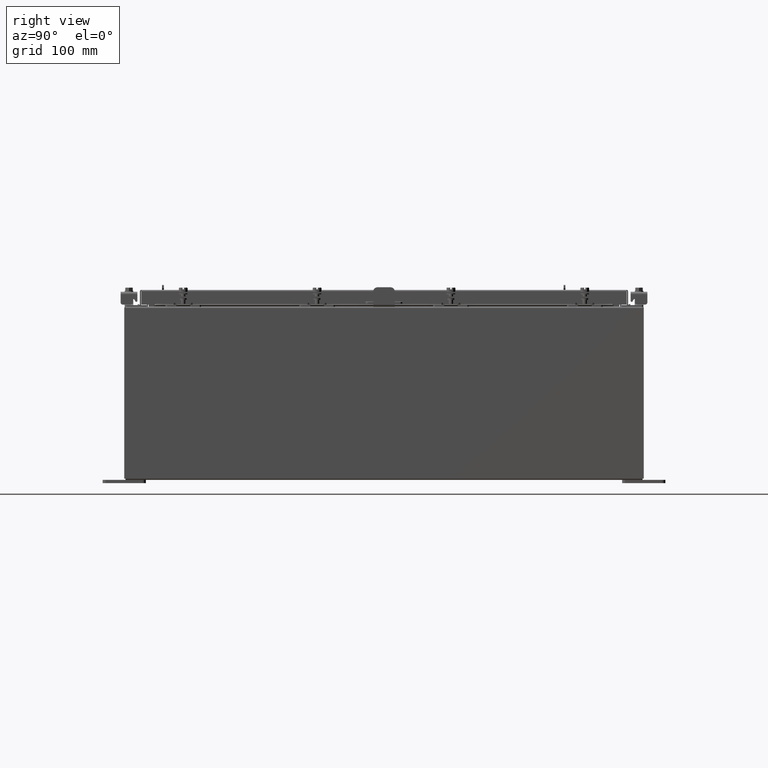
[diagram: clean part render]
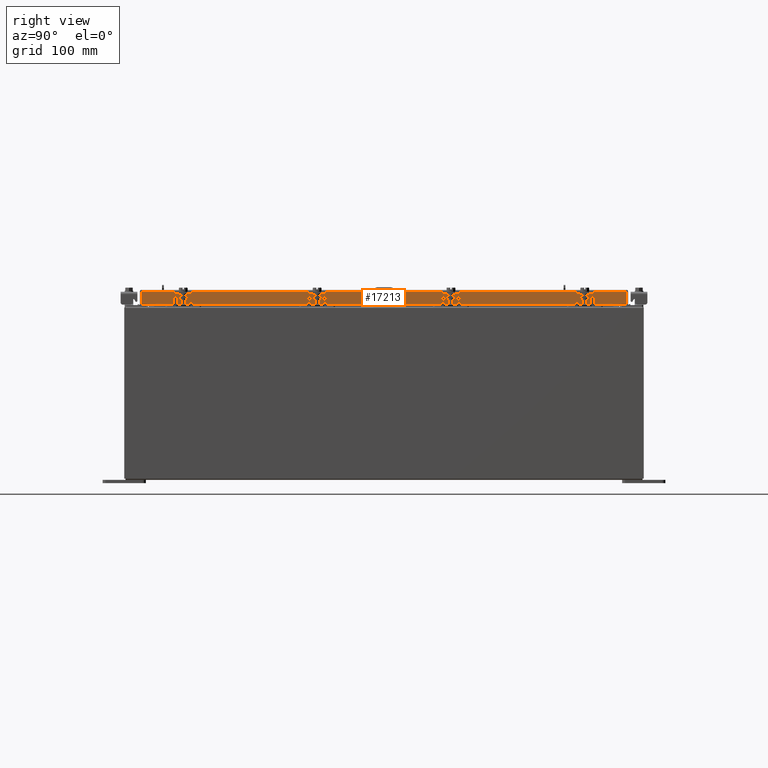
[diagram: same view with one face highlighted and labeled with its STEP entity id]
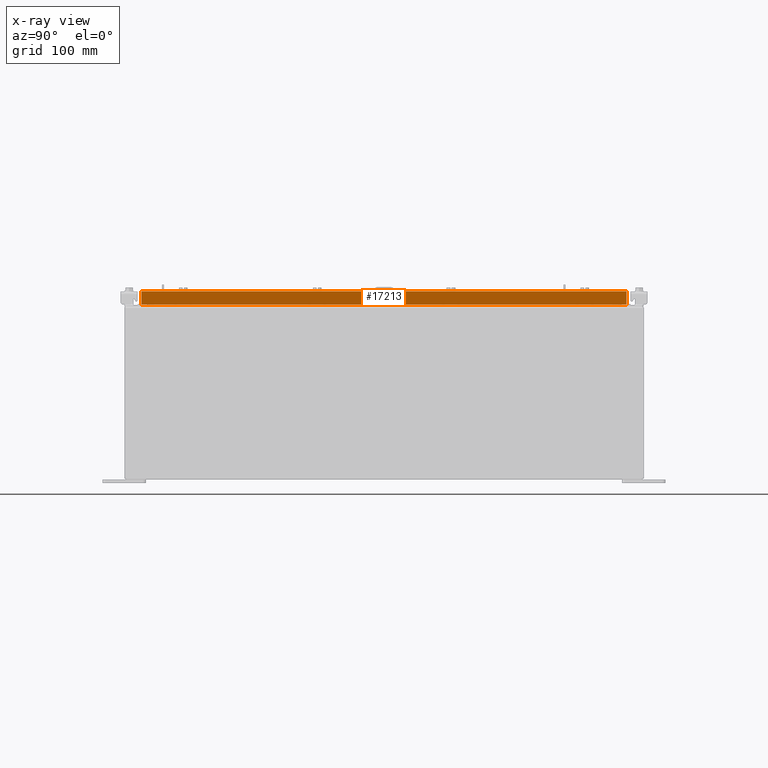
[diagram: x-ray of the same camera — body ghosted, the highlighted face saturated]
A machine part, right view. The second image highlights one B-rep face of the part: STEP entity #17213.
The next image is the same camera in x-ray: the body ghosted, the highlighted face saturated — about 0% of this face is hidden behind the body in this view.
In plain terms, the highlighted planar face has unit normal (1, 0, 0).
Its self-contained STEP definition (entity closure, byte-faithful):
#381 = VERTEX_POINT ( 'NONE', #20601 ) ;
#526 = LINE ( 'NONE', #9786, #1094 ) ;
#1094 = VECTOR ( 'NONE', #20515, 39.37007874015748100 ) ;
#1583 = EDGE_CURVE ( 'NONE', #5458, #15209, #19812, .T. ) ;
#2791 = CARTESIAN_POINT ( 'NONE',  ( 11.07799999999999900, 0.0000000000000000000, 3.148837674004379000E-014 ) ) ;
#2934 = CARTESIAN_POINT ( 'NONE',  ( 11.07800000000000300, 14.00515786437627200, -0.8499999999999996400 ) ) ;
#3004 = EDGE_CURVE ( 'NONE', #15209, #13571, #18316, .T. ) ;
#3027 = VECTOR ( 'NONE', #17104, 39.37007874015748100 ) ;
#4011 = CARTESIAN_POINT ( 'NONE',  ( 11.07799999999999900, -14.00515786437626900, -0.08770000000000007000 ) ) ;
#4092 = CARTESIAN_POINT ( 'NONE',  ( 11.07799999999999200, 13.25515786437627100, -0.8500000000000018700 ) ) ;
#4206 = CARTESIAN_POINT ( 'NONE',  ( 11.07799999999999200, 13.25515786437627200, -0.8500000000000018700 ) ) ;
#4257 = ORIENTED_EDGE ( 'NONE', *, *, #20857, .T. ) ;
#4609 = PLANE ( 'NONE',  #14924 ) ;
#5265 = DIRECTION ( 'NONE',  ( -2.818880942772360100E-015, -6.982962677686265900E-015, 1.000000000000000000 ) ) ;
#5458 = VERTEX_POINT ( 'NONE', #2934 ) ;
#6318 = VECTOR ( 'NONE', #22873, 39.37007874015748100 ) ;
#6401 = DIRECTION ( 'NONE',  ( 1.000000000000000000, 0.0000000000000000000, 2.818880942772360100E-015 ) ) ;
#6505 = VERTEX_POINT ( 'NONE', #13073 ) ;
#6657 = VECTOR ( 'NONE', #5265, 39.37007874015748100 ) ;
#7994 = DIRECTION ( 'NONE',  ( 0.0000000000000000000, -1.000000000000000000, 0.0000000000000000000 ) ) ;
#9786 = CARTESIAN_POINT ( 'NONE',  ( 11.07799999999999900, 0.0000000000000000000, -0.08770000000000007000 ) ) ;
#10162 = EDGE_LOOP ( 'NONE', ( #12715, #15397, #10196, #15177, #11966, #4257 ) ) ;
#10196 = ORIENTED_EDGE ( 'NONE', *, *, #3004, .F. ) ;
#10386 = CARTESIAN_POINT ( 'NONE',  ( 11.07800000000000300, -14.09399999999999900, -0.8499999999999996400 ) ) ;
#11745 = CARTESIAN_POINT ( 'NONE',  ( 11.07799999999999900, 14.00515786437626900, 1.292858714020875700E-013 ) ) ;
#11966 = ORIENTED_EDGE ( 'NONE', *, *, #21584, .T. ) ;
#12301 = VECTOR ( 'NONE', #7994, 39.37007874015748100 ) ;
#12715 = ORIENTED_EDGE ( 'NONE', *, *, #17385, .F. ) ;
#12871 = LINE ( 'NONE', #16892, #12301 ) ;
#13073 = CARTESIAN_POINT ( 'NONE',  ( 11.07799999999999900, 14.00515786437626500, -0.08770000000000007000 ) ) ;
#13571 = VERTEX_POINT ( 'NONE', #20067 ) ;
#14924 = AXIS2_PLACEMENT_3D ( 'NONE', #2791, #6401, #18905 ) ;
#15177 = ORIENTED_EDGE ( 'NONE', *, *, #1583, .F. ) ;
#15209 = VERTEX_POINT ( 'NONE', #4092 ) ;
#15397 = ORIENTED_EDGE ( 'NONE', *, *, #16489, .F. ) ;
#16151 = LINE ( 'NONE', #11745, #3027 ) ;
#16295 = VERTEX_POINT ( 'NONE', #4011 ) ;
#16489 = EDGE_CURVE ( 'NONE', #13571, #381, #12871, .T. ) ;
#16699 = DIRECTION ( 'NONE',  ( 0.0000000000000000000, -1.000000000000000000, 0.0000000000000000000 ) ) ;
#16729 = LINE ( 'NONE', #23061, #6657 ) ;
#16892 = CARTESIAN_POINT ( 'NONE',  ( 11.07800000000000300, -14.09399999999999900, -0.8499999999999996400 ) ) ;
#17104 = DIRECTION ( 'NONE',  ( -2.818880942772360100E-015, -6.982962677686265900E-015, 1.000000000000000000 ) ) ;
#17213 = ADVANCED_FACE ( 'NONE', ( #23161 ), #4609, .T. ) ;
#17385 = EDGE_CURVE ( 'NONE', #381, #16295, #16729, .T. ) ;
#18316 = LINE ( 'NONE', #4206, #23062 ) ;
#18905 = DIRECTION ( 'NONE',  ( 2.818880942772360100E-015, 0.0000000000000000000, -1.000000000000000000 ) ) ;
#19812 = LINE ( 'NONE', #10386, #6318 ) ;
#20067 = CARTESIAN_POINT ( 'NONE',  ( 11.07799999999999200, -13.25515786437626400, -0.8500000000000018700 ) ) ;
#20515 = DIRECTION ( 'NONE',  ( 0.0000000000000000000, -1.000000000000000000, 0.0000000000000000000 ) ) ;
#20601 = CARTESIAN_POINT ( 'NONE',  ( 11.07800000000000300, -14.00515786437626400, -0.8499999999999996400 ) ) ;
#20857 = EDGE_CURVE ( 'NONE', #6505, #16295, #526, .T. ) ;
#21584 = EDGE_CURVE ( 'NONE', #5458, #6505, #16151, .T. ) ;
#22873 = DIRECTION ( 'NONE',  ( 0.0000000000000000000, -1.000000000000000000, 0.0000000000000000000 ) ) ;
#23061 = CARTESIAN_POINT ( 'NONE',  ( 11.07799999999999900, -14.00515786437626900, -0.07469999999999978000 ) ) ;
#23062 = VECTOR ( 'NONE', #16699, 39.37007874015748100 ) ;
#23161 = FACE_OUTER_BOUND ( 'NONE', #10162, .T. ) ;